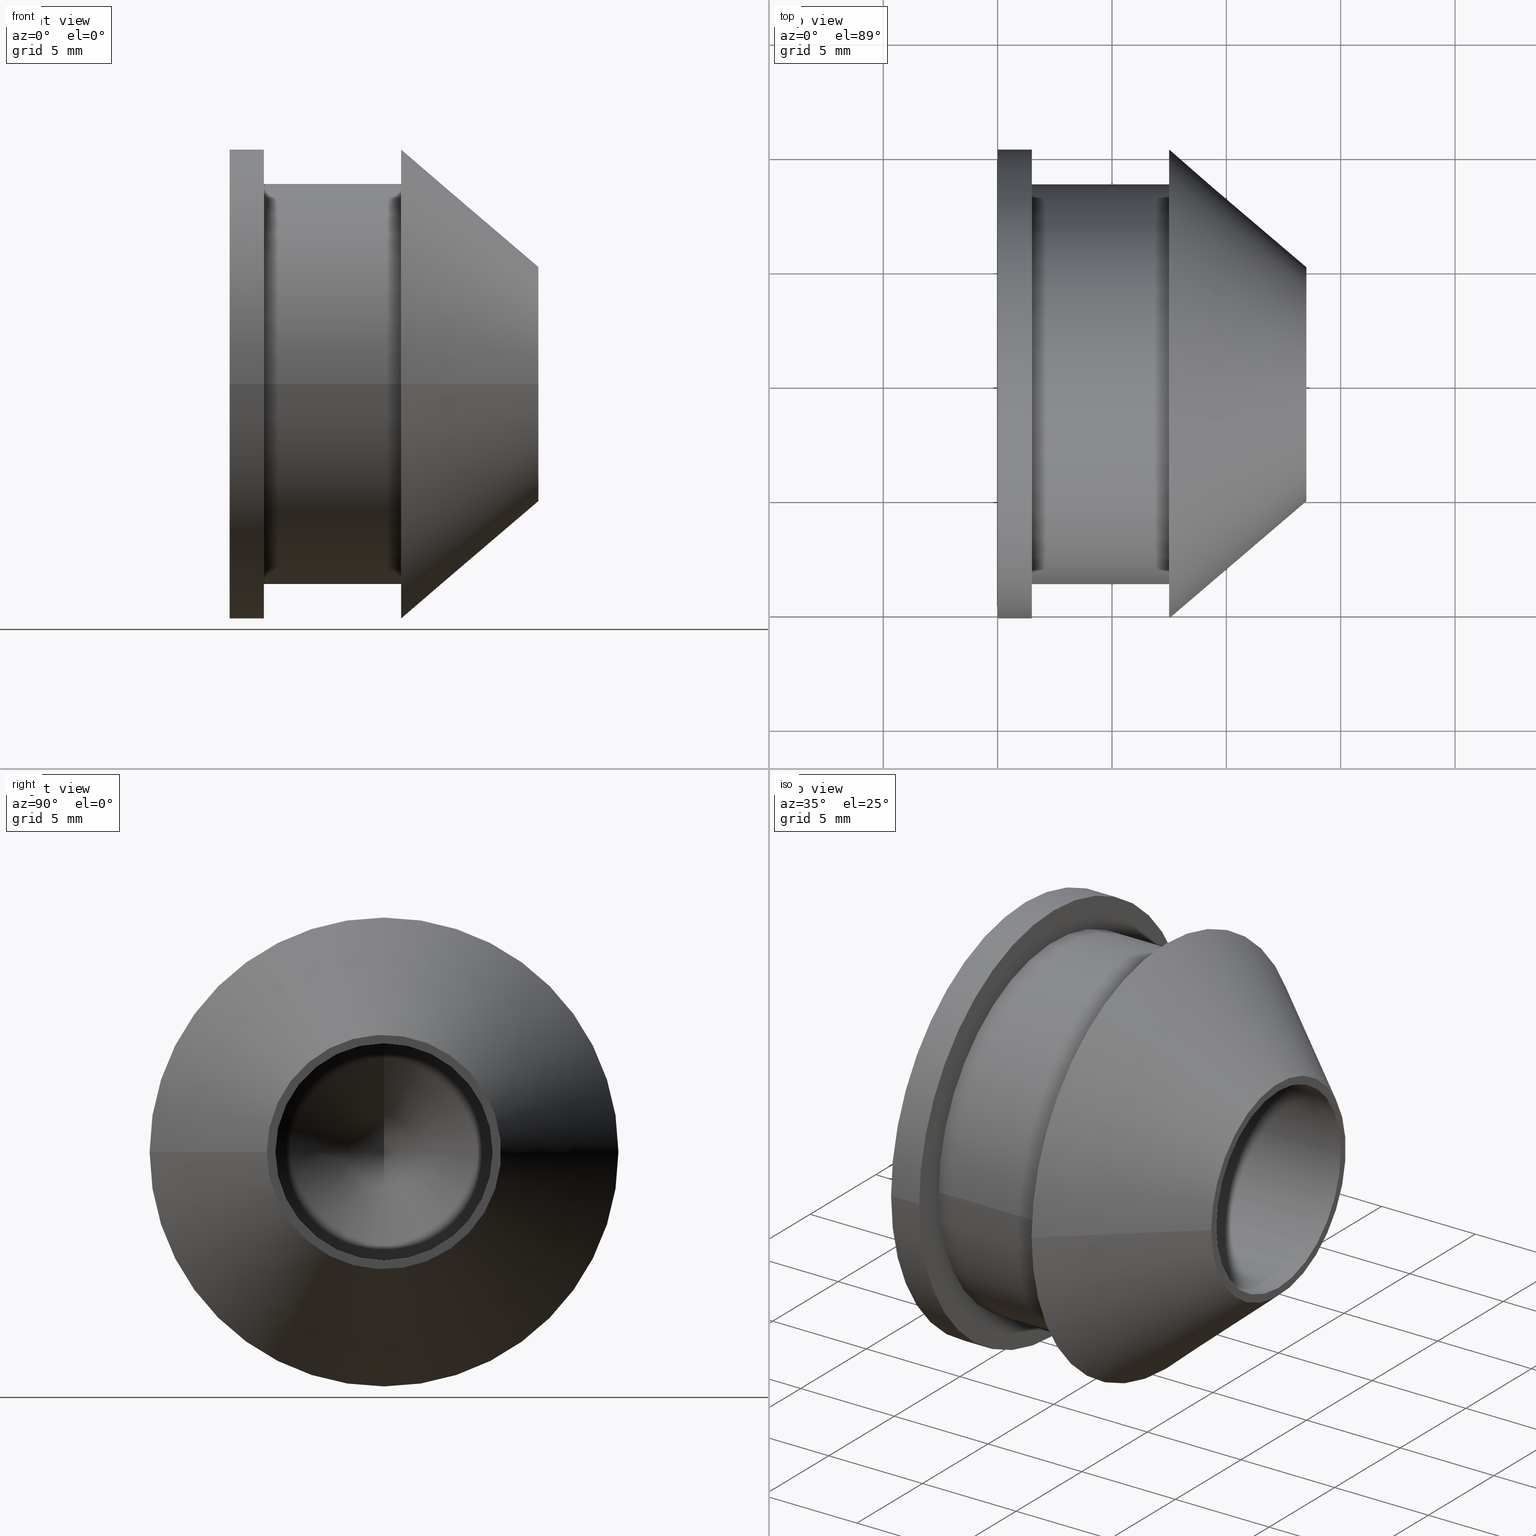
[diagram: canonical four-view strip — front | top / right | iso, engineering-drawing reading convention]
A machine part, canonical four-view strip (front | top / right | iso — engineering-drawing reading convention). The complete STEP part file that produces these views, byte-faithful:
ISO-10303-21;
HEADER;
/* Generated by software containing ST-Developer
 * from STEP Tools, Inc. (www.steptools.com) 
 */

FILE_DESCRIPTION(
/* description */ ('AGGANCIO A CLIPS GOMMA NERA'),
/* implementation_level */ '2;1');

FILE_NAME(
/* name */ 
'C:\\Users\\tecnico7\\Desktop\\NUOVI DISEGNI 3D\\CFXYY0000001.stp',
/* time_stamp */ '2022-11-24T09:16:07+01:00',
/* author */ ('tecnico7'),
/* organization */ (''),
/* preprocessor_version */ 'ST-DEVELOPER v18.1',
/* originating_system */ 'Autodesk Inventor 2022',
/* authorisation */ '');

FILE_SCHEMA (('AUTOMOTIVE_DESIGN { 1 0 10303 214 3 1 1 }'));
ENDSEC;

DATA;
#10=MECHANICAL_DESIGN_GEOMETRIC_PRESENTATION_REPRESENTATION('',(#13),#239);
#11=SHAPE_REPRESENTATION_RELATIONSHIP('SRR','None',#246,#12);
#12=ADVANCED_BREP_SHAPE_REPRESENTATION('',(#14),#238);
#13=STYLED_ITEM('',(#255),#14);
#14=MANIFOLD_SOLID_BREP('Solido1',#123);
#15=FACE_BOUND('',#38,.T.);
#16=FACE_BOUND('',#41,.T.);
#17=FACE_BOUND('',#44,.T.);
#18=PLANE('',#153);
#19=PLANE('',#157);
#20=PLANE('',#161);
#21=PLANE('',#162);
#22=CYLINDRICAL_SURFACE('',#148,4.75);
#23=CYLINDRICAL_SURFACE('',#150,10.25);
#24=CYLINDRICAL_SURFACE('',#155,8.75);
#25=FACE_OUTER_BOUND('',#34,.T.);
#26=FACE_OUTER_BOUND('',#35,.T.);
#27=FACE_OUTER_BOUND('',#36,.T.);
#28=FACE_OUTER_BOUND('',#37,.T.);
#29=FACE_OUTER_BOUND('',#39,.T.);
#30=FACE_OUTER_BOUND('',#40,.T.);
#31=FACE_OUTER_BOUND('',#42,.T.);
#32=FACE_OUTER_BOUND('',#43,.T.);
#33=FACE_OUTER_BOUND('',#45,.T.);
#34=EDGE_LOOP('',(#86,#87,#88));
#35=EDGE_LOOP('',(#89,#90,#91,#92));
#36=EDGE_LOOP('',(#93,#94,#95,#96));
#37=EDGE_LOOP('',(#97));
#38=EDGE_LOOP('',(#98));
#39=EDGE_LOOP('',(#99,#100,#101,#102));
#40=EDGE_LOOP('',(#103));
#41=EDGE_LOOP('',(#104));
#42=EDGE_LOOP('',(#105,#106,#107,#108));
#43=EDGE_LOOP('',(#109));
#44=EDGE_LOOP('',(#110));
#45=EDGE_LOOP('',(#111));
#46=LINE('',#209,#51);
#47=LINE('',#213,#52);
#48=LINE('',#218,#53);
#49=LINE('',#226,#54);
#50=LINE('',#233,#55);
#51=VECTOR('',#169,2.375);
#52=VECTOR('',#174,4.75);
#53=VECTOR('',#179,10.25);
#54=VECTOR('',#190,8.75);
#55=VECTOR('',#199,7.6875);
#56=CIRCLE('',#147,4.75);
#57=CIRCLE('',#149,4.75);
#58=CIRCLE('',#151,10.25);
#59=CIRCLE('',#152,10.25);
#60=CIRCLE('',#154,8.75);
#61=CIRCLE('',#156,8.75);
#62=CIRCLE('',#158,10.25);
#63=CIRCLE('',#160,5.125);
#64=VERTEX_POINT('',#206);
#65=VERTEX_POINT('',#208);
#66=VERTEX_POINT('',#211);
#67=VERTEX_POINT('',#215);
#68=VERTEX_POINT('',#217);
#69=VERTEX_POINT('',#221);
#70=VERTEX_POINT('',#224);
#71=VERTEX_POINT('',#228);
#72=VERTEX_POINT('',#231);
#73=EDGE_CURVE('',#64,#64,#56,.T.);
#74=EDGE_CURVE('',#64,#65,#46,.T.);
#75=EDGE_CURVE('',#66,#66,#57,.T.);
#76=EDGE_CURVE('',#66,#64,#47,.T.);
#77=EDGE_CURVE('',#67,#67,#58,.T.);
#78=EDGE_CURVE('',#67,#68,#48,.T.);
#79=EDGE_CURVE('',#68,#68,#59,.T.);
#80=EDGE_CURVE('',#69,#69,#60,.T.);
#81=EDGE_CURVE('',#70,#70,#61,.T.);
#82=EDGE_CURVE('',#70,#69,#49,.T.);
#83=EDGE_CURVE('',#71,#71,#62,.T.);
#84=EDGE_CURVE('',#72,#72,#63,.T.);
#85=EDGE_CURVE('',#72,#71,#50,.T.);
#86=ORIENTED_EDGE('',*,*,#73,.T.);
#87=ORIENTED_EDGE('',*,*,#74,.T.);
#88=ORIENTED_EDGE('',*,*,#74,.F.);
#89=ORIENTED_EDGE('',*,*,#75,.F.);
#90=ORIENTED_EDGE('',*,*,#76,.T.);
#91=ORIENTED_EDGE('',*,*,#73,.F.);
#92=ORIENTED_EDGE('',*,*,#76,.F.);
#93=ORIENTED_EDGE('',*,*,#77,.F.);
#94=ORIENTED_EDGE('',*,*,#78,.T.);
#95=ORIENTED_EDGE('',*,*,#79,.T.);
#96=ORIENTED_EDGE('',*,*,#78,.F.);
#97=ORIENTED_EDGE('',*,*,#77,.T.);
#98=ORIENTED_EDGE('',*,*,#80,.F.);
#99=ORIENTED_EDGE('',*,*,#81,.F.);
#100=ORIENTED_EDGE('',*,*,#82,.T.);
#101=ORIENTED_EDGE('',*,*,#80,.T.);
#102=ORIENTED_EDGE('',*,*,#82,.F.);
#103=ORIENTED_EDGE('',*,*,#83,.F.);
#104=ORIENTED_EDGE('',*,*,#81,.T.);
#105=ORIENTED_EDGE('',*,*,#84,.F.);
#106=ORIENTED_EDGE('',*,*,#85,.T.);
#107=ORIENTED_EDGE('',*,*,#83,.T.);
#108=ORIENTED_EDGE('',*,*,#85,.F.);
#109=ORIENTED_EDGE('',*,*,#84,.T.);
#110=ORIENTED_EDGE('',*,*,#75,.T.);
#111=ORIENTED_EDGE('',*,*,#79,.F.);
#112=CONICAL_SURFACE('',#146,2.375,1.02974425867665);
#113=CONICAL_SURFACE('',#159,7.6875,0.706908060760116);
#114=ADVANCED_FACE('',(#25),#112,.F.);
#115=ADVANCED_FACE('',(#26),#22,.F.);
#116=ADVANCED_FACE('',(#27),#23,.T.);
#117=ADVANCED_FACE('',(#28,#15),#18,.T.);
#118=ADVANCED_FACE('',(#29),#24,.T.);
#119=ADVANCED_FACE('',(#30,#16),#19,.T.);
#120=ADVANCED_FACE('',(#31),#113,.T.);
#121=ADVANCED_FACE('',(#32,#17),#20,.T.);
#122=ADVANCED_FACE('',(#33),#21,.T.);
#123=CLOSED_SHELL('',(#114,#115,#116,#117,#118,#119,#120,#121,#122));
#124=DERIVED_UNIT_ELEMENT(#127,1.);
#125=DERIVED_UNIT_ELEMENT(#241,-3.);
#126=DIMENSIONAL_EXPONENTS(1.,0.,0.,0.,0.,0.,0.);
#127=(
CONVERSION_BASED_UNIT('gram',#129)
MASS_UNIT()
NAMED_UNIT(#126)
);
#128=(
MASS_UNIT()
NAMED_UNIT(*)
SI_UNIT(.KILO.,.GRAM.)
);
#129=MASS_MEASURE_WITH_UNIT(MASS_MEASURE(0.001),#128);
#130=DERIVED_UNIT((#124,#125));
#131=MEASURE_REPRESENTATION_ITEM('density measure',
POSITIVE_RATIO_MEASURE(0.93),#130);
#132=PROPERTY_DEFINITION_REPRESENTATION(#137,#134);
#133=PROPERTY_DEFINITION_REPRESENTATION(#138,#135);
#134=REPRESENTATION('material name',(#136),#238);
#135=REPRESENTATION('density',(#131),#238);
#136=DESCRIPTIVE_REPRESENTATION_ITEM('Gomma','Gomma');
#137=PROPERTY_DEFINITION('material property','material name',#248);
#138=PROPERTY_DEFINITION('material property','density of part',#248);
#139=DATE_TIME_ROLE('creation_date');
#140=APPLIED_DATE_AND_TIME_ASSIGNMENT(#141,#139,(#248));
#141=DATE_AND_TIME(#142,#143);
#142=CALENDAR_DATE(2019,8,3);
#143=LOCAL_TIME(0,0,0.,#144);
#144=COORDINATED_UNIVERSAL_TIME_OFFSET(0,0,.BEHIND.);
#145=AXIS2_PLACEMENT_3D('placement',#204,#163,#164);
#146=AXIS2_PLACEMENT_3D('',#205,#165,#166);
#147=AXIS2_PLACEMENT_3D('',#207,#167,#168);
#148=AXIS2_PLACEMENT_3D('',#210,#170,#171);
#149=AXIS2_PLACEMENT_3D('',#212,#172,#173);
#150=AXIS2_PLACEMENT_3D('',#214,#175,#176);
#151=AXIS2_PLACEMENT_3D('',#216,#177,#178);
#152=AXIS2_PLACEMENT_3D('',#219,#180,#181);
#153=AXIS2_PLACEMENT_3D('',#220,#182,#183);
#154=AXIS2_PLACEMENT_3D('',#222,#184,#185);
#155=AXIS2_PLACEMENT_3D('',#223,#186,#187);
#156=AXIS2_PLACEMENT_3D('',#225,#188,#189);
#157=AXIS2_PLACEMENT_3D('',#227,#191,#192);
#158=AXIS2_PLACEMENT_3D('',#229,#193,#194);
#159=AXIS2_PLACEMENT_3D('',#230,#195,#196);
#160=AXIS2_PLACEMENT_3D('',#232,#197,#198);
#161=AXIS2_PLACEMENT_3D('',#234,#200,#201);
#162=AXIS2_PLACEMENT_3D('',#235,#202,#203);
#163=DIRECTION('axis',(0.,0.,1.));
#164=DIRECTION('refdir',(1.,0.,0.));
#165=DIRECTION('center_axis',(1.,0.,0.));
#166=DIRECTION('ref_axis',(0.,0.,-1.));
#167=DIRECTION('center_axis',(1.,0.,0.));
#168=DIRECTION('ref_axis',(0.,0.,-1.));
#169=DIRECTION('',(-0.515038074910054,1.04972719113862E-16,-0.857167300702112));
#170=DIRECTION('center_axis',(1.,0.,0.));
#171=DIRECTION('ref_axis',(0.,0.,-1.));
#172=DIRECTION('center_axis',(-1.,0.,0.));
#173=DIRECTION('ref_axis',(0.,0.,-1.));
#174=DIRECTION('',(-1.,0.,0.));
#175=DIRECTION('center_axis',(1.,0.,0.));
#176=DIRECTION('ref_axis',(0.,1.,0.));
#177=DIRECTION('center_axis',(1.,0.,0.));
#178=DIRECTION('ref_axis',(0.,0.,-1.));
#179=DIRECTION('',(-1.,0.,0.));
#180=DIRECTION('center_axis',(1.,0.,0.));
#181=DIRECTION('ref_axis',(0.,0.,-1.));
#182=DIRECTION('center_axis',(1.,0.,0.));
#183=DIRECTION('ref_axis',(0.,0.,-1.));
#184=DIRECTION('center_axis',(1.,0.,0.));
#185=DIRECTION('ref_axis',(0.,0.,-1.));
#186=DIRECTION('center_axis',(1.,0.,0.));
#187=DIRECTION('ref_axis',(0.,1.,0.));
#188=DIRECTION('center_axis',(1.,0.,0.));
#189=DIRECTION('ref_axis',(0.,0.,-1.));
#190=DIRECTION('',(-1.,0.,0.));
#191=DIRECTION('center_axis',(-1.,0.,0.));
#192=DIRECTION('ref_axis',(0.,0.,1.));
#193=DIRECTION('center_axis',(1.,0.,0.));
#194=DIRECTION('ref_axis',(0.,0.,-1.));
#195=DIRECTION('center_axis',(-1.,0.,0.));
#196=DIRECTION('ref_axis',(0.,1.,0.));
#197=DIRECTION('center_axis',(1.,0.,0.));
#198=DIRECTION('ref_axis',(0.,0.,-1.));
#199=DIRECTION('',(-0.760373678193383,-0.649485850123515,-7.9539076744526E-17));
#200=DIRECTION('center_axis',(1.,0.,0.));
#201=DIRECTION('ref_axis',(0.,0.,-1.));
#202=DIRECTION('center_axis',(-1.,0.,0.));
#203=DIRECTION('ref_axis',(0.,0.,1.));
#204=CARTESIAN_POINT('',(0.,0.,0.));
#205=CARTESIAN_POINT('Origin',(4.07295602980954,0.,0.));
#206=CARTESIAN_POINT('',(5.5,-5.81707229594993E-16,4.75));
#207=CARTESIAN_POINT('Origin',(5.5,0.,0.));
#208=CARTESIAN_POINT('',(2.64591205961909,0.,0.));
#209=CARTESIAN_POINT('',(4.07295602980954,-2.90853614797496E-16,2.375));
#210=CARTESIAN_POINT('Origin',(9.5,0.,0.));
#211=CARTESIAN_POINT('',(13.5,-5.81707229594993E-16,4.75));
#212=CARTESIAN_POINT('Origin',(13.5,0.,0.));
#213=CARTESIAN_POINT('',(9.5,-5.81707229594993E-16,4.75));
#214=CARTESIAN_POINT('Origin',(0.75,0.,0.));
#215=CARTESIAN_POINT('',(1.5,-10.25,-1.25526296912604E-15));
#216=CARTESIAN_POINT('Origin',(1.5,0.,0.));
#217=CARTESIAN_POINT('',(0.,-10.25,-1.25526296912604E-15));
#218=CARTESIAN_POINT('',(0.75,-10.25,-1.25526296912604E-15));
#219=CARTESIAN_POINT('Origin',(0.,0.,0.));
#220=CARTESIAN_POINT('Origin',(1.5,8.75,0.));
#221=CARTESIAN_POINT('',(1.5,-8.75,-1.07156594925393E-15));
#222=CARTESIAN_POINT('Origin',(1.5,0.,0.));
#223=CARTESIAN_POINT('Origin',(4.5,0.,0.));
#224=CARTESIAN_POINT('',(7.5,-8.75,-1.07156594925393E-15));
#225=CARTESIAN_POINT('Origin',(7.5,0.,0.));
#226=CARTESIAN_POINT('',(4.5,-8.75,-1.07156594925393E-15));
#227=CARTESIAN_POINT('Origin',(7.5,10.25,0.));
#228=CARTESIAN_POINT('',(7.5,-10.25,-1.25526296912604E-15));
#229=CARTESIAN_POINT('Origin',(7.5,0.,0.));
#230=CARTESIAN_POINT('Origin',(10.5,0.,0.));
#231=CARTESIAN_POINT('',(13.5,-5.125,-6.27631484563019E-16));
#232=CARTESIAN_POINT('Origin',(13.5,0.,0.));
#233=CARTESIAN_POINT('',(10.5,-7.6875,-9.41447226844528E-16));
#234=CARTESIAN_POINT('Origin',(13.5,0.,0.));
#235=CARTESIAN_POINT('Origin',(0.,10.25,0.));
#236=UNCERTAINTY_MEASURE_WITH_UNIT(LENGTH_MEASURE(0.01),#240,
'DISTANCE_ACCURACY_VALUE',
'Maximum model space distance between geometric entities at asserted c
onnectivities');
#237=UNCERTAINTY_MEASURE_WITH_UNIT(LENGTH_MEASURE(0.01),#240,
'DISTANCE_ACCURACY_VALUE',
'Maximum model space distance between geometric entities at asserted c
onnectivities');
#238=(
GEOMETRIC_REPRESENTATION_CONTEXT(3)
GLOBAL_UNCERTAINTY_ASSIGNED_CONTEXT((#236))
GLOBAL_UNIT_ASSIGNED_CONTEXT((#240,#242,#243))
REPRESENTATION_CONTEXT('','3D')
);
#239=(
GEOMETRIC_REPRESENTATION_CONTEXT(3)
GLOBAL_UNCERTAINTY_ASSIGNED_CONTEXT((#237))
GLOBAL_UNIT_ASSIGNED_CONTEXT((#240,#242,#243))
REPRESENTATION_CONTEXT('','3D')
);
#240=(
LENGTH_UNIT()
NAMED_UNIT(*)
SI_UNIT(.MILLI.,.METRE.)
);
#241=(
LENGTH_UNIT()
NAMED_UNIT(*)
SI_UNIT(.CENTI.,.METRE.)
);
#242=(
NAMED_UNIT(*)
PLANE_ANGLE_UNIT()
SI_UNIT($,.RADIAN.)
);
#243=(
NAMED_UNIT(*)
SI_UNIT($,.STERADIAN.)
SOLID_ANGLE_UNIT()
);
#244=SHAPE_DEFINITION_REPRESENTATION(#245,#246);
#245=PRODUCT_DEFINITION_SHAPE('',$,#248);
#246=SHAPE_REPRESENTATION('',(#145),#238);
#247=PRODUCT_DEFINITION_CONTEXT('part definition',#252,'design');
#248=PRODUCT_DEFINITION('CFXYY0000001','CFXYY0000001',#249,#247);
#249=PRODUCT_DEFINITION_FORMATION('A',$,#254);
#250=PRODUCT_RELATED_PRODUCT_CATEGORY('CFXYY0000001','CFXYY0000001',(#254));
#251=APPLICATION_PROTOCOL_DEFINITION('international standard',
'automotive_design',2009,#252);
#252=APPLICATION_CONTEXT(
'Core Data for Automotive Mechanical Design Process');
#253=PRODUCT_CONTEXT('part definition',#252,'mechanical');
#254=PRODUCT('CFXYY0000001','CFXYY0000001',
'AGGANCIO A CLIPS GOMMA NERA',(#253));
#255=PRESENTATION_STYLE_ASSIGNMENT((#256));
#256=SURFACE_STYLE_USAGE(.BOTH.,#259);
#257=SURFACE_STYLE_RENDERING_WITH_PROPERTIES($,#263,(#258));
#258=SURFACE_STYLE_TRANSPARENT(0.);
#259=SURFACE_SIDE_STYLE('',(#260,#257));
#260=SURFACE_STYLE_FILL_AREA(#261);
#261=FILL_AREA_STYLE('',(#262));
#262=FILL_AREA_STYLE_COLOUR('',#263);
#263=COLOUR_RGB('',0.16078431372549,0.16078431372549,0.16078431372549);
ENDSEC;
END-ISO-10303-21;
